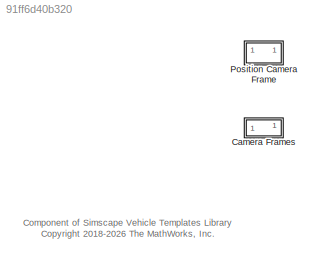
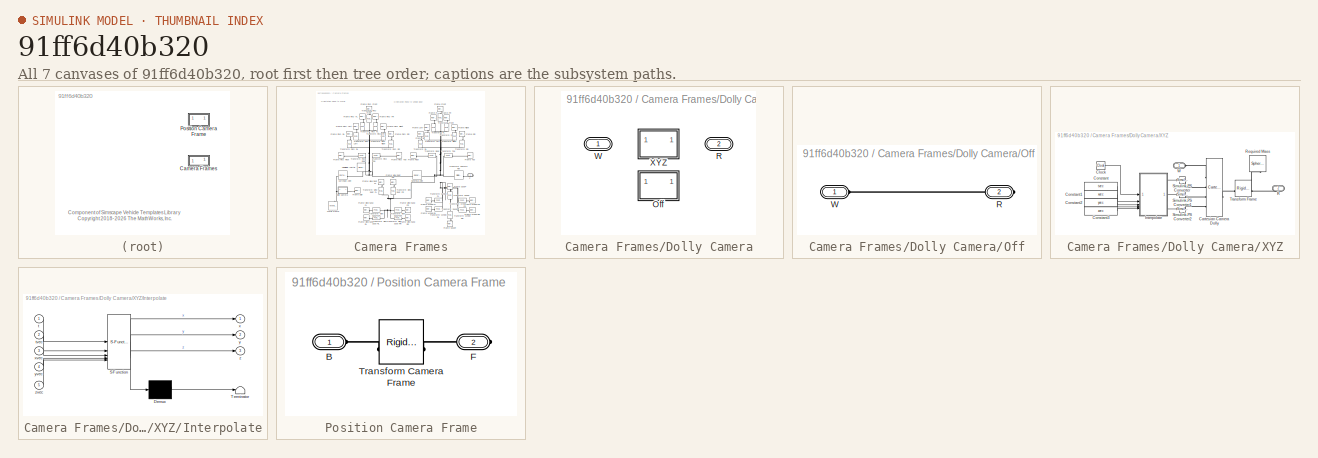
[diagram: thumbnail index - all 7 canvases of the model, root first then tree order]
MODEL slx_91ff6d40b320
KIND library
CONFIG SolverName = VariableStepAuto
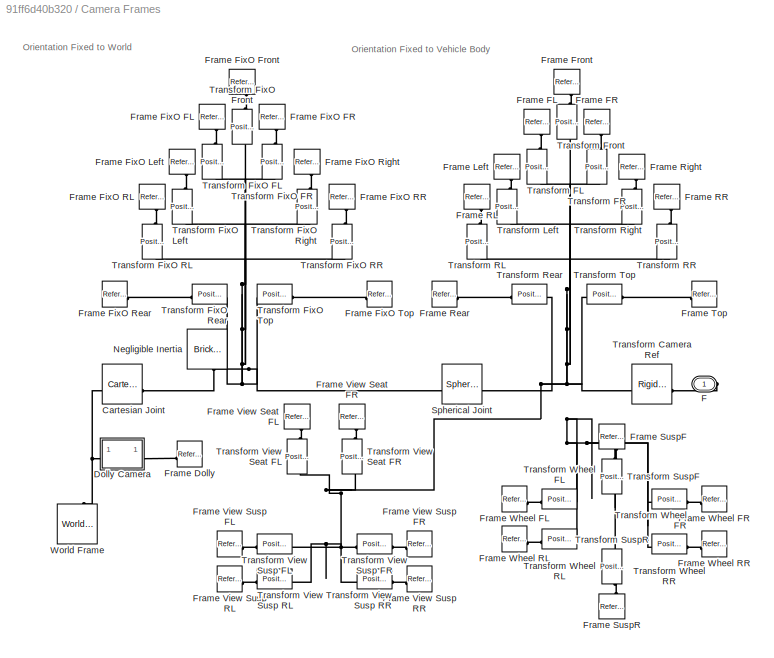
BLOCK [SubSystem] Camera Frames
BLOCK [Reference] Camera Frames/Cartesian Joint  REF=sm_lib/Joints/Cartesian
Joint
  SourceBlock = sm_lib/Joints/Cartesian\nJoint
  SourceType = Cartesian\nJoint
BLOCK [SubSystem] Camera Frames/Dolly Camera
  AttributesFormatString = %<ActiveVariant>
  LabelModeActiveChoice = Off
  Variant = on
  VariantControl = Variant1
  VariantControlMode = label
BLOCK [PMIOPort] Camera Frames/Dolly Camera/ R
  Port = 2
  Side = Right
BLOCK [PMIOPort] Camera Frames/Dolly Camera/ W
  Side = Left
BLOCK [SubSystem] Camera Frames/Dolly Camera/Off
  VariantControl = Off
BLOCK [PMIOPort] Camera Frames/Dolly Camera/Off/R
  NameLocation = top
  Port = 2
  Side = Right
BLOCK [PMIOPort] Camera Frames/Dolly Camera/Off/W
  Side = Left
BLOCK [SubSystem] Camera Frames/Dolly Camera/XYZ
  VariantControl = XYZ
BLOCK [Reference] Camera Frames/Dolly Camera/XYZ/Cartesian Camera Dolly  REF=sm_lib/Joints/Cartesian
Joint
  SourceBlock = sm_lib/Joints/Cartesian\nJoint
  SourceType = Cartesian\nJoint
BLOCK [Clock] Camera Frames/Dolly Camera/XYZ/Clock
BLOCK [Constant] Camera Frames/Dolly Camera/XYZ/Constant
  Value = tvec
BLOCK [Constant] Camera Frames/Dolly Camera/XYZ/Constant1
  Value = xvec
BLOCK [Constant] Camera Frames/Dolly Camera/XYZ/Constant2
  Value = yvec
BLOCK [Constant] Camera Frames/Dolly Camera/XYZ/Constant3
  Value = zvec
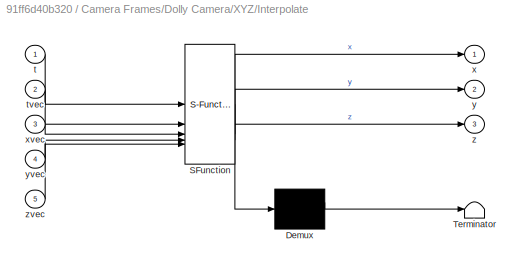
BLOCK [SubSystem] Camera Frames/Dolly Camera/XYZ/Interpolate
  ErrorFcn = Stateflow.Translate.translate
  PermitHierarchicalResolution = ExplicitOnly
  SFBlockType = MATLAB Function
  TreatAsAtomicUnit = on
BLOCK [Demux] Camera Frames/Dolly Camera/XYZ/Interpolate/ Demux 
  Outputs = 1
BLOCK [S-Function] Camera Frames/Dolly Camera/XYZ/Interpolate/ SFunction 
  EnableBusSupport = off
  FunctionName = sf_sfun
  PortCounts = [5 4]
  SFcnIsStateOwnerBlock = off
  SFunctionDeploymentMode = off
  Tag = Stateflow S-Function 2
BLOCK [Terminator] Camera Frames/Dolly Camera/XYZ/Interpolate/ Terminator 
BLOCK [Inport] Camera Frames/Dolly Camera/XYZ/Interpolate/t
BLOCK [Inport] Camera Frames/Dolly Camera/XYZ/Interpolate/tvec
  Port = 2
BLOCK [Outport] Camera Frames/Dolly Camera/XYZ/Interpolate/x
  VectorParamsAs1DForOutWhenUnconnected = off
BLOCK [Inport] Camera Frames/Dolly Camera/XYZ/Interpolate/xvec
  Port = 3
BLOCK [Outport] Camera Frames/Dolly Camera/XYZ/Interpolate/y
  Port = 2
  VectorParamsAs1DForOutWhenUnconnected = off
BLOCK [Inport] Camera Frames/Dolly Camera/XYZ/Interpolate/yvec
  Port = 4
BLOCK [Outport] Camera Frames/Dolly Camera/XYZ/Interpolate/z
  Port = 3
  VectorParamsAs1DForOutWhenUnconnected = off
BLOCK [Inport] Camera Frames/Dolly Camera/XYZ/Interpolate/zvec
  Port = 5
BLOCK [PMIOPort] Camera Frames/Dolly Camera/XYZ/R
  NameLocation = top
  Port = 2
  Side = Right
BLOCK [Reference] Camera Frames/Dolly Camera/XYZ/Required Mass  REF=sm_lib/Body Elements/Spherical Solid
  NameLocation = left
  SourceBlock = sm_lib/Body Elements/Spherical Solid
  SourceType = Spherical Solid
BLOCK [Reference] Camera Frames/Dolly Camera/XYZ/Simulink-PS Converter  REF=nesl_utility/Simulink-PS
Converter
  SourceBlock = nesl_utility/Simulink-PS\nConverter
  SourceType = Simulink-PS\nConverter
BLOCK [Reference] Camera Frames/Dolly Camera/XYZ/Simulink-PS Converter1  REF=nesl_utility/Simulink-PS
Converter
  SourceBlock = nesl_utility/Simulink-PS\nConverter
  SourceType = Simulink-PS\nConverter
BLOCK [Reference] Camera Frames/Dolly Camera/XYZ/Simulink-PS Converter2  REF=nesl_utility/Simulink-PS
Converter
  SourceBlock = nesl_utility/Simulink-PS\nConverter
  SourceType = Simulink-PS\nConverter
BLOCK [Reference] Camera Frames/Dolly Camera/XYZ/Transform Frame  REF=sm_lib/Frames and
Transforms/Rigid
Transform
  SourceBlock = sm_lib/Frames and\nTransforms/Rigid\nTransform
  SourceType = Rigid\nTransform
BLOCK [PMIOPort] Camera Frames/Dolly Camera/XYZ/W
  Side = Left
BLOCK [PMIOPort] Camera Frames/F
  Side = Right
BLOCK [Reference] Camera Frames/Frame Dolly  REF=sm_lib/Frames and
Transforms/Reference
Frame
  SourceBlock = sm_lib/Frames and\nTransforms/Reference\nFrame
  SourceType = Reference\nFrame
BLOCK [Reference] Camera Frames/Frame FL  REF=sm_lib/Frames and
Transforms/Reference
Frame
  NameLocation = left
  SourceBlock = sm_lib/Frames and\nTransforms/Reference\nFrame
  SourceType = Reference\nFrame
BLOCK [Reference] Camera Frames/Frame FR  REF=sm_lib/Frames and
Transforms/Reference
Frame
  NameLocation = right
  SourceBlock = sm_lib/Frames and\nTransforms/Reference\nFrame
  SourceType = Reference\nFrame
BLOCK [Reference] Camera Frames/Frame FixO FL  REF=sm_lib/Frames and
Transforms/Reference
Frame
  NameLocation = left
  SourceBlock = sm_lib/Frames and\nTransforms/Reference\nFrame
  SourceType = Reference\nFrame
BLOCK [Reference] Camera Frames/Frame FixO FR  REF=sm_lib/Frames and
Transforms/Reference
Frame
  NameLocation = right
  SourceBlock = sm_lib/Frames and\nTransforms/Reference\nFrame
  SourceType = Reference\nFrame
BLOCK [Reference] Camera Frames/Frame FixO Front  REF=sm_lib/Frames and
Transforms/Reference
Frame
  NameLocation = right
  SourceBlock = sm_lib/Frames and\nTransforms/Reference\nFrame
  SourceType = Reference\nFrame
BLOCK [Reference] Camera Frames/Frame FixO Left  REF=sm_lib/Frames and
Transforms/Reference
Frame
  NameLocation = left
  SourceBlock = sm_lib/Frames and\nTransforms/Reference\nFrame
  SourceType = Reference\nFrame
BLOCK [Reference] Camera Frames/Frame FixO RL  REF=sm_lib/Frames and
Transforms/Reference
Frame
  NameLocation = left
  SourceBlock = sm_lib/Frames and\nTransforms/Reference\nFrame
  SourceType = Reference\nFrame
BLOCK [Reference] Camera Frames/Frame FixO RR  REF=sm_lib/Frames and
Transforms/Reference
Frame
  NameLocation = right
  SourceBlock = sm_lib/Frames and\nTransforms/Reference\nFrame
  SourceType = Reference\nFrame
BLOCK [Reference] Camera Frames/Frame FixO Rear  REF=sm_lib/Frames and
Transforms/Reference
Frame
  NameLocation = top
  SourceBlock = sm_lib/Frames and\nTransforms/Reference\nFrame
  SourceType = Reference\nFrame
BLOCK [Reference] Camera Frames/Frame FixO Right  REF=sm_lib/Frames and
Transforms/Reference
Frame
  NameLocation = right
  SourceBlock = sm_lib/Frames and\nTransforms/Reference\nFrame
  SourceType = Reference\nFrame
BLOCK [Reference] Camera Frames/Frame FixO Top  REF=sm_lib/Frames and
Transforms/Reference
Frame
  NameLocation = top
  SourceBlock = sm_lib/Frames and\nTransforms/Reference\nFrame
  SourceType = Reference\nFrame
BLOCK [Reference] Camera Frames/Frame Front  REF=sm_lib/Frames and
Transforms/Reference
Frame
  NameLocation = right
  SourceBlock = sm_lib/Frames and\nTransforms/Reference\nFrame
  SourceType = Reference\nFrame
BLOCK [Reference] Camera Frames/Frame Left  REF=sm_lib/Frames and
Transforms/Reference
Frame
  NameLocation = left
  SourceBlock = sm_lib/Frames and\nTransforms/Reference\nFrame
  SourceType = Reference\nFrame
BLOCK [Reference] Camera Frames/Frame RL  REF=sm_lib/Frames and
Transforms/Reference
Frame
  NameLocation = left
  SourceBlock = sm_lib/Frames and\nTransforms/Reference\nFrame
  SourceType = Reference\nFrame
BLOCK [Reference] Camera Frames/Frame RR  REF=sm_lib/Frames and
Transforms/Reference
Frame
  NameLocation = right
  SourceBlock = sm_lib/Frames and\nTransforms/Reference\nFrame
  SourceType = Reference\nFrame
BLOCK [Reference] Camera Frames/Frame Rear  REF=sm_lib/Frames and
Transforms/Reference
Frame
  NameLocation = top
  SourceBlock = sm_lib/Frames and\nTransforms/Reference\nFrame
  SourceType = Reference\nFrame
BLOCK [Reference] Camera Frames/Frame Right  REF=sm_lib/Frames and
Transforms/Reference
Frame
  NameLocation = right
  SourceBlock = sm_lib/Frames and\nTransforms/Reference\nFrame
  SourceType = Reference\nFrame
BLOCK [Reference] Camera Frames/Frame SuspF  REF=sm_lib/Frames and
Transforms/Reference
Frame
  NameLocation = right
  SourceBlock = sm_lib/Frames and\nTransforms/Reference\nFrame
  SourceType = Reference\nFrame
BLOCK [Reference] Camera Frames/Frame SuspR  REF=sm_lib/Frames and
Transforms/Reference
Frame
  NameLocation = right
  SourceBlock = sm_lib/Frames and\nTransforms/Reference\nFrame
  SourceType = Reference\nFrame
BLOCK [Reference] Camera Frames/Frame Top  REF=sm_lib/Frames and
Transforms/Reference
Frame
  NameLocation = top
  SourceBlock = sm_lib/Frames and\nTransforms/Reference\nFrame
  SourceType = Reference\nFrame
BLOCK [Reference] Camera Frames/Frame View Seat FL  REF=sm_lib/Frames and
Transforms/Reference
Frame
  NameLocation = left
  SourceBlock = sm_lib/Frames and\nTransforms/Reference\nFrame
  SourceType = Reference\nFrame
BLOCK [Reference] Camera Frames/Frame View Seat FR  REF=sm_lib/Frames and
Transforms/Reference
Frame
  NameLocation = right
  SourceBlock = sm_lib/Frames and\nTransforms/Reference\nFrame
  SourceType = Reference\nFrame
BLOCK [Reference] Camera Frames/Frame View Susp FL  REF=sm_lib/Frames and
Transforms/Reference
Frame
  NameLocation = top
  SourceBlock = sm_lib/Frames and\nTransforms/Reference\nFrame
  SourceType = Reference\nFrame
BLOCK [Reference] Camera Frames/Frame View Susp FR  REF=sm_lib/Frames and
Transforms/Reference
Frame
  NameLocation = top
  SourceBlock = sm_lib/Frames and\nTransforms/Reference\nFrame
  SourceType = Reference\nFrame
BLOCK [Reference] Camera Frames/Frame View Susp RL  REF=sm_lib/Frames and
Transforms/Reference
Frame
  SourceBlock = sm_lib/Frames and\nTransforms/Reference\nFrame
  SourceType = Reference\nFrame
BLOCK [Reference] Camera Frames/Frame View Susp RR  REF=sm_lib/Frames and
Transforms/Reference
Frame
  SourceBlock = sm_lib/Frames and\nTransforms/Reference\nFrame
  SourceType = Reference\nFrame
BLOCK [Reference] Camera Frames/Frame Wheel FL  REF=sm_lib/Frames and
Transforms/Reference
Frame
  NameLocation = top
  SourceBlock = sm_lib/Frames and\nTransforms/Reference\nFrame
  SourceType = Reference\nFrame
BLOCK [Reference] Camera Frames/Frame Wheel FR  REF=sm_lib/Frames and
Transforms/Reference
Frame
  NameLocation = top
  SourceBlock = sm_lib/Frames and\nTransforms/Reference\nFrame
  SourceType = Reference\nFrame
BLOCK [Reference] Camera Frames/Frame Wheel RL  REF=sm_lib/Frames and
Transforms/Reference
Frame
  SourceBlock = sm_lib/Frames and\nTransforms/Reference\nFrame
  SourceType = Reference\nFrame
BLOCK [Reference] Camera Frames/Frame Wheel RR  REF=sm_lib/Frames and
Transforms/Reference
Frame
  SourceBlock = sm_lib/Frames and\nTransforms/Reference\nFrame
  SourceType = Reference\nFrame
BLOCK [Reference] Camera Frames/Negligible Inertia  REF=sm_lib/Body Elements/Brick Solid
  NameLocation = left
  SourceBlock = sm_lib/Body Elements/Brick Solid
  SourceType = Brick Solid
BLOCK [Reference] Camera Frames/Spherical Joint  REF=sm_lib/Joints/Spherical
Joint
  NameLocation = top
  SourceBlock = sm_lib/Joints/Spherical\nJoint
  SourceType = Spherical\nJoint
BLOCK [Reference] Camera Frames/Transform Camera Ref  REF=sm_lib/Frames and
Transforms/Rigid
Transform
  NameLocation = top
  SourceBlock = sm_lib/Frames and\nTransforms/Rigid\nTransform
  SourceType = Rigid\nTransform
BLOCK [Reference] Camera Frames/Transform FL  REF=$bdroot/Position Camera Frame
  NameLocation = left
  SourceBlock = $bdroot/Position Camera Frame
  SourceType = Define Camera Frame
BLOCK [Reference] Camera Frames/Transform FR  REF=$bdroot/Position Camera Frame
  NameLocation = left
  SourceBlock = $bdroot/Position Camera Frame
  SourceType = Define Camera Frame
BLOCK [Reference] Camera Frames/Transform FixO FL  REF=$bdroot/Position Camera Frame
  NameLocation = left
  SourceBlock = $bdroot/Position Camera Frame
  SourceType = Define Camera Frame
BLOCK [Reference] Camera Frames/Transform FixO FR  REF=$bdroot/Position Camera Frame
  NameLocation = left
  SourceBlock = $bdroot/Position Camera Frame
  SourceType = Define Camera Frame
BLOCK [Reference] Camera Frames/Transform FixO Front  REF=$bdroot/Position Camera Frame
  NameLocation = left
  SourceBlock = $bdroot/Position Camera Frame
  SourceType = Define Camera Frame
BLOCK [Reference] Camera Frames/Transform FixO Left  REF=$bdroot/Position Camera Frame
  NameLocation = left
  SourceBlock = $bdroot/Position Camera Frame
  SourceType = Define Camera Frame
BLOCK [Reference] Camera Frames/Transform FixO RL  REF=$bdroot/Position Camera Frame
  NameLocation = left
  SourceBlock = $bdroot/Position Camera Frame
  SourceType = Define Camera Frame
BLOCK [Reference] Camera Frames/Transform FixO RR  REF=$bdroot/Position Camera Frame
  NameLocation = right
  SourceBlock = $bdroot/Position Camera Frame
  SourceType = Define Camera Frame
BLOCK [Reference] Camera Frames/Transform FixO Rear  REF=$bdroot/Position Camera Frame
  SourceBlock = $bdroot/Position Camera Frame
  SourceType = Define Camera Frame
BLOCK [Reference] Camera Frames/Transform FixO Right  REF=$bdroot/Position Camera Frame
  NameLocation = right
  SourceBlock = $bdroot/Position Camera Frame
  SourceType = Define Camera Frame
BLOCK [Reference] Camera Frames/Transform FixO Top  REF=$bdroot/Position Camera Frame
  NameLocation = top
  SourceBlock = $bdroot/Position Camera Frame
  SourceType = Define Camera Frame
BLOCK [Reference] Camera Frames/Transform Front  REF=$bdroot/Position Camera Frame
  NameLocation = left
  SourceBlock = $bdroot/Position Camera Frame
  SourceType = Define Camera Frame
BLOCK [Reference] Camera Frames/Transform Left  REF=$bdroot/Position Camera Frame
  NameLocation = left
  SourceBlock = $bdroot/Position Camera Frame
  SourceType = Define Camera Frame
BLOCK [Reference] Camera Frames/Transform RL  REF=$bdroot/Position Camera Frame
  NameLocation = left
  SourceBlock = $bdroot/Position Camera Frame
  SourceType = Define Camera Frame
BLOCK [Reference] Camera Frames/Transform RR  REF=$bdroot/Position Camera Frame
  NameLocation = left
  SourceBlock = $bdroot/Position Camera Frame
  SourceType = Define Camera Frame
BLOCK [Reference] Camera Frames/Transform Rear  REF=$bdroot/Position Camera Frame
  SourceBlock = $bdroot/Position Camera Frame
  SourceType = Define Camera Frame
BLOCK [Reference] Camera Frames/Transform Right  REF=$bdroot/Position Camera Frame
  NameLocation = left
  SourceBlock = $bdroot/Position Camera Frame
  SourceType = Define Camera Frame
BLOCK [Reference] Camera Frames/Transform SuspF  REF=$bdroot/Position Camera Frame
  NameLocation = left
  SourceBlock = $bdroot/Position Camera Frame
  SourceType = Define Camera Frame
BLOCK [Reference] Camera Frames/Transform SuspR  REF=$bdroot/Position Camera Frame
  NameLocation = left
  SourceBlock = $bdroot/Position Camera Frame
  SourceType = Define Camera Frame
BLOCK [Reference] Camera Frames/Transform Top  REF=$bdroot/Position Camera Frame
  SourceBlock = $bdroot/Position Camera Frame
  SourceType = Define Camera Frame
BLOCK [Reference] Camera Frames/Transform View Seat FL  REF=$bdroot/Position Camera Frame
  NameLocation = left
  SourceBlock = $bdroot/Position Camera Frame
  SourceType = Define Camera Frame
BLOCK [Reference] Camera Frames/Transform View Seat FR  REF=$bdroot/Position Camera Frame
  NameLocation = right
  SourceBlock = $bdroot/Position Camera Frame
  SourceType = Define Camera Frame
BLOCK [Reference] Camera Frames/Transform View Susp FL  REF=$bdroot/Position Camera Frame
  SourceBlock = $bdroot/Position Camera Frame
  SourceType = Define Camera Frame
BLOCK [Reference] Camera Frames/Transform View Susp FR  REF=$bdroot/Position Camera Frame
  NameLocation = top
  SourceBlock = $bdroot/Position Camera Frame
  SourceType = Define Camera Frame
BLOCK [Reference] Camera Frames/Transform View Susp RL  REF=$bdroot/Position Camera Frame
  SourceBlock = $bdroot/Position Camera Frame
  SourceType = Define Camera Frame
BLOCK [Reference] Camera Frames/Transform View Susp RR  REF=$bdroot/Position Camera Frame
  SourceBlock = $bdroot/Position Camera Frame
  SourceType = Define Camera Frame
BLOCK [Reference] Camera Frames/Transform Wheel FL  REF=$bdroot/Position Camera Frame
  SourceBlock = $bdroot/Position Camera Frame
  SourceType = Define Camera Frame
BLOCK [Reference] Camera Frames/Transform Wheel FR  REF=$bdroot/Position Camera Frame
  NameLocation = top
  SourceBlock = $bdroot/Position Camera Frame
  SourceType = Define Camera Frame
BLOCK [Reference] Camera Frames/Transform Wheel RL  REF=$bdroot/Position Camera Frame
  SourceBlock = $bdroot/Position Camera Frame
  SourceType = Define Camera Frame
BLOCK [Reference] Camera Frames/Transform Wheel RR  REF=$bdroot/Position Camera Frame
  SourceBlock = $bdroot/Position Camera Frame
  SourceType = Define Camera Frame
BLOCK [Reference] Camera Frames/World Frame  REF=sm_lib/Frames and
Transforms/World Frame
  NameLocation = right
  SourceBlock = sm_lib/Frames and\nTransforms/World Frame
  SourceType = World Frame
BLOCK [SubSystem] Position Camera Frame
BLOCK [PMIOPort] Position Camera Frame/B
  Side = Left
BLOCK [PMIOPort] Position Camera Frame/F
  Port = 2
  Side = Right
BLOCK [Reference] Position Camera Frame/Transform Camera Frame  REF=sm_lib/Frames and
Transforms/Rigid
Transform
  SourceBlock = sm_lib/Frames and\nTransforms/Rigid\nTransform
  SourceType = Rigid\nTransform
ANNOTATION (root): Component of Simscape Vehicle Templates Library <copyright redacted>
ANNOTATION Camera Frames: Orientation Fixed to Vehicle Body
ANNOTATION Camera Frames: Orientation Fixed to World
PLINE Position Camera Frame/B:RConn1 -- Position Camera Frame/Transform Camera Frame:LConn1
PLINE Position Camera Frame/F:RConn1 -- Position Camera Frame/Transform Camera Frame:RConn1
CHART Camera Frames/Dolly
Camera/XYZ/Interpolate states=1 transitions=1
  STATE_LABEL 'eML_blk_kernel()'
  STATE_LABEL "SCRIPT:\nfunction [x,y,z] = fcn(t,tvec,xvec,yvec,zvec)\n\nx = interp1(tvec,xvec,t,'pchip');\ny = interp1(tvec,yvec,t,'pchip');\nz = interp1(tvec,zvec,t,'pchip');\n\n\n"
CHART  states=0 transitions=0
